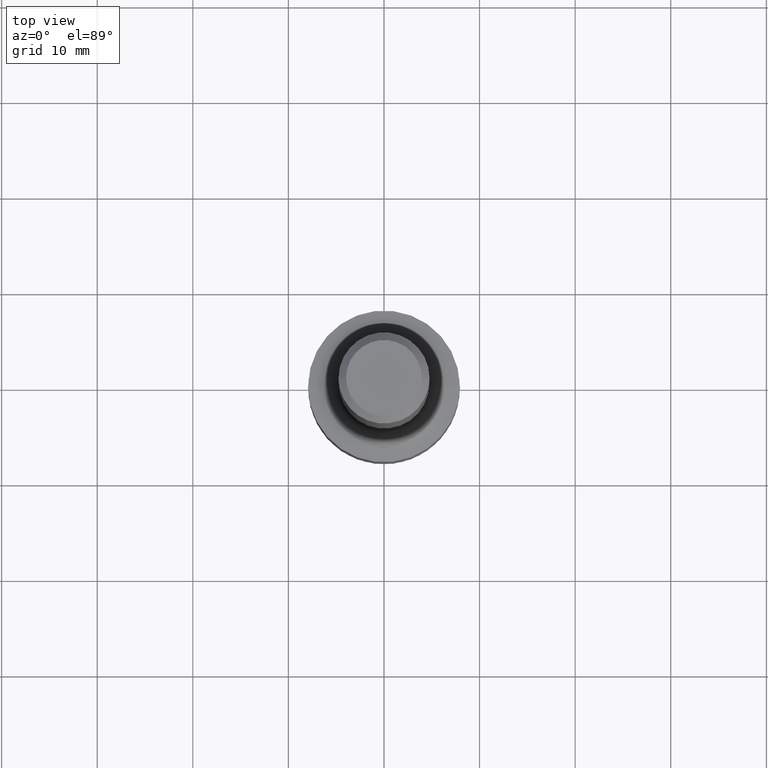
[diagram: clean part render]
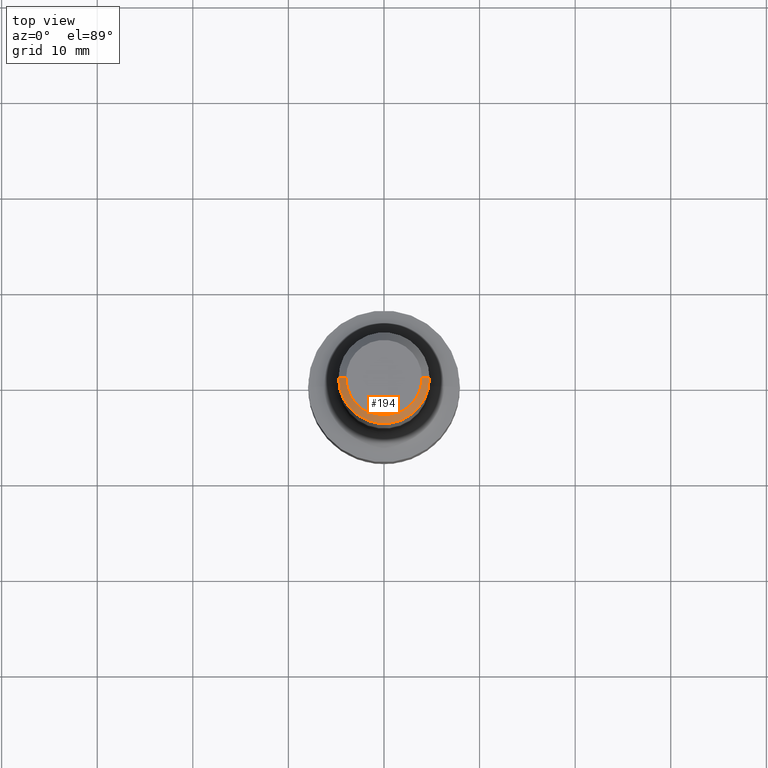
[diagram: same view with one face highlighted and labeled with its STEP entity id]
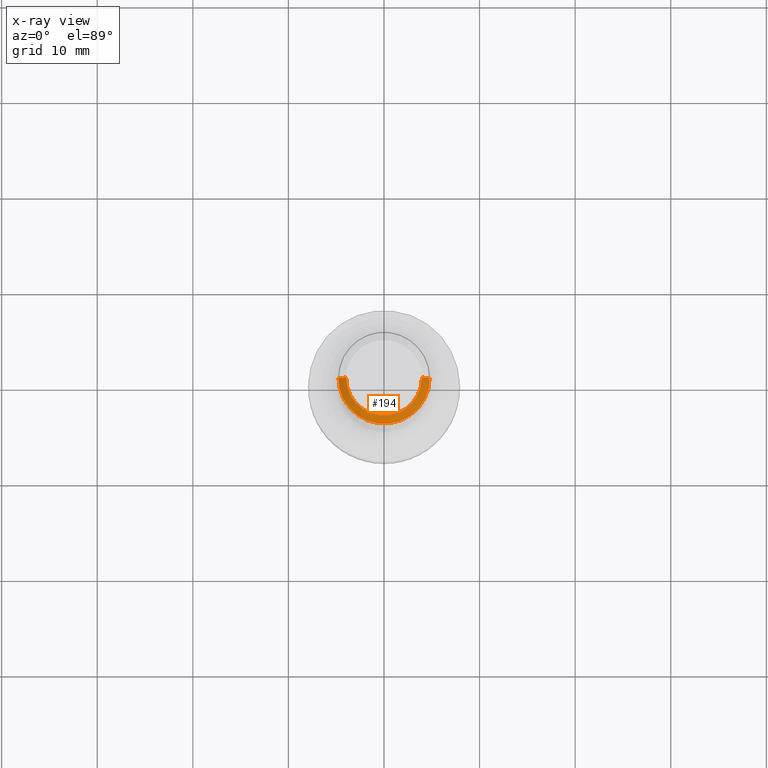
[diagram: x-ray of the same camera — body ghosted, the highlighted face saturated]
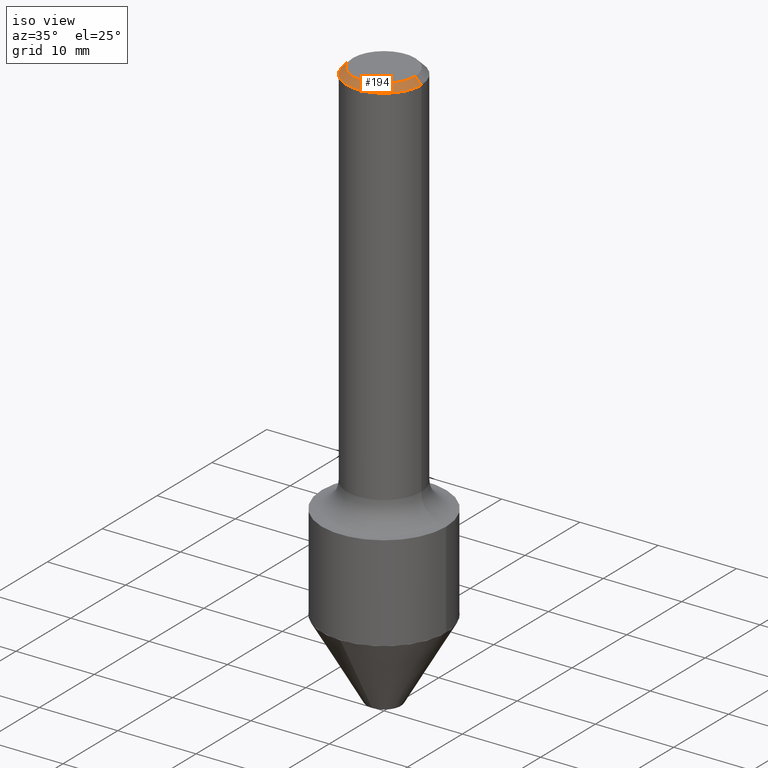
[diagram: same view with one face highlighted and labeled with its STEP entity id]
A machine part, top view. The second image highlights one B-rep face of the part: STEP entity #194.
The next image is the same camera in x-ray: the body ghosted, the highlighted face saturated — about 0% of this face is hidden behind the body in this view.
A second angle (iso view) of the same face is appended — the face is thin or edge-on in the first view.
In plain terms, the highlighted conical surface has half-angle 45 deg.
Its self-contained STEP definition (entity closure, byte-faithful):
#4 = EDGE_CURVE ( 'NONE', #399, #507, #239, .T. ) ;
#31 = EDGE_CURVE ( 'NONE', #122, #309, #355, .T. ) ;
#48 = CONICAL_SURFACE ( 'NONE', #215, 0.1875000000000000278, 0.7853981633974439491 ) ;
#52 = CARTESIAN_POINT ( 'NONE',  ( -0.1563000000000000500, 1.145904175408315963E-15, 7.654042494663141351E-18 ) ) ;
#59 = FACE_OUTER_BOUND ( 'NONE', #311, .T. ) ;
#69 = CARTESIAN_POINT ( 'NONE',  ( 0.1563000000000000500, -1.233786714702880152E-15, 7.654042494679095754E-18 ) ) ;
#80 = CIRCLE ( 'NONE', #323, 0.1875000000000000278 ) ;
#99 = DIRECTION ( 'NONE',  ( -1.000000000000000000, 6.982962677686265922E-15, 0.000000000000000000 ) ) ;
#122 = VERTEX_POINT ( 'NONE', #52 ) ;
#146 = CIRCLE ( 'NONE', #450, 0.1563000000000000500 ) ;
#159 = ORIENTED_EDGE ( 'NONE', *, *, #31, .T. ) ;
#163 = ORIENTED_EDGE ( 'NONE', *, *, #455, .F. ) ;
#167 = VECTOR ( 'NONE', #365, 39.37007874015748143 ) ;
#179 = CARTESIAN_POINT ( 'NONE',  ( -0.1875000000000000278, 1.200371284294268058E-15, -0.03120000000000022755 ) ) ;
#192 = EDGE_CURVE ( 'NONE', #309, #507, #80, .T. ) ;
#194 = ADVANCED_FACE ( 'NONE', ( #59 ), #48, .T. ) ;
#202 = CARTESIAN_POINT ( 'NONE',  ( 0.1875000000000000278, -1.395277592354069315E-15, -0.03120000000000022755 ) ) ;
#215 = AXIS2_PLACEMENT_3D ( 'NONE', #465, #499, #99 ) ;
#228 = CARTESIAN_POINT ( 'NONE',  ( -1.871772216193331159E-46, 2.672394653685611172E-32, 7.654042494670965249E-18 ) ) ;
#237 = ORIENTED_EDGE ( 'NONE', *, *, #4, .F. ) ;
#239 = LINE ( 'NONE', #202, #167 ) ;
#269 = ORIENTED_EDGE ( 'NONE', *, *, #192, .T. ) ;
#309 = VERTEX_POINT ( 'NONE', #179 ) ;
#311 = EDGE_LOOP ( 'NONE', ( #237, #163, #159, #269 ) ) ;
#319 = DIRECTION ( 'NONE',  ( -2.445468806185136597E-29, 3.491481338843145583E-15, 1.000000000000000000 ) ) ;
#320 = CARTESIAN_POINT ( 'NONE',  ( -0.1875000000000000278, 1.200371284294268058E-15, -0.03120000000000022755 ) ) ;
#323 = AXIS2_PLACEMENT_3D ( 'NONE', #457, #334, #419 ) ;
#334 = DIRECTION ( 'NONE',  ( -2.445468806185136597E-29, 3.491481338843145583E-15, 1.000000000000000000 ) ) ;
#355 = LINE ( 'NONE', #320, #515 ) ;
#365 = DIRECTION ( 'NONE',  ( 0.7071067811865444641, -7.319954787623245001E-15, -0.7071067811865505703 ) ) ;
#399 = VERTEX_POINT ( 'NONE', #69 ) ;
#419 = DIRECTION ( 'NONE',  ( 1.000000000000000000, -6.982962677686265922E-15, 0.000000000000000000 ) ) ;
#450 = AXIS2_PLACEMENT_3D ( 'NONE', #228, #319, #513 ) ;
#455 = EDGE_CURVE ( 'NONE', #122, #399, #146, .T. ) ;
#457 = CARTESIAN_POINT ( 'NONE',  ( 7.629862675297681829E-31, -1.089342177719069380E-16, -0.03120000000000022755 ) ) ;
#465 = CARTESIAN_POINT ( 'NONE',  ( 7.629862675297681829E-31, -1.089342177719069380E-16, -0.03120000000000022755 ) ) ;
#483 = DIRECTION ( 'NONE',  ( -0.7071067811865444641, 2.468850131082224717E-15, -0.7071067811865505703 ) ) ;
#485 = CARTESIAN_POINT ( 'NONE',  ( 0.1875000000000000278, -1.395277592354069315E-15, -0.03120000000000022755 ) ) ;
#499 = DIRECTION ( 'NONE',  ( 2.445468806185136597E-29, -3.491481338843145583E-15, -1.000000000000000000 ) ) ;
#507 = VERTEX_POINT ( 'NONE', #485 ) ;
#513 = DIRECTION ( 'NONE',  ( 1.000000000000000000, -6.982962677686266711E-15, 4.876046809215620980E-29 ) ) ;
#515 = VECTOR ( 'NONE', #483, 39.37007874015748143 ) ;